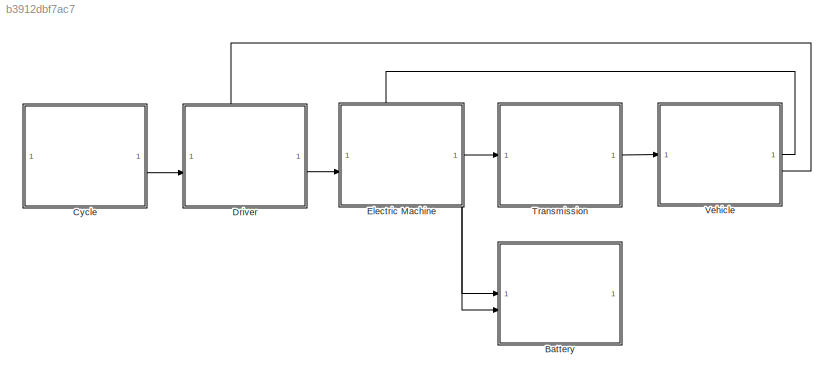
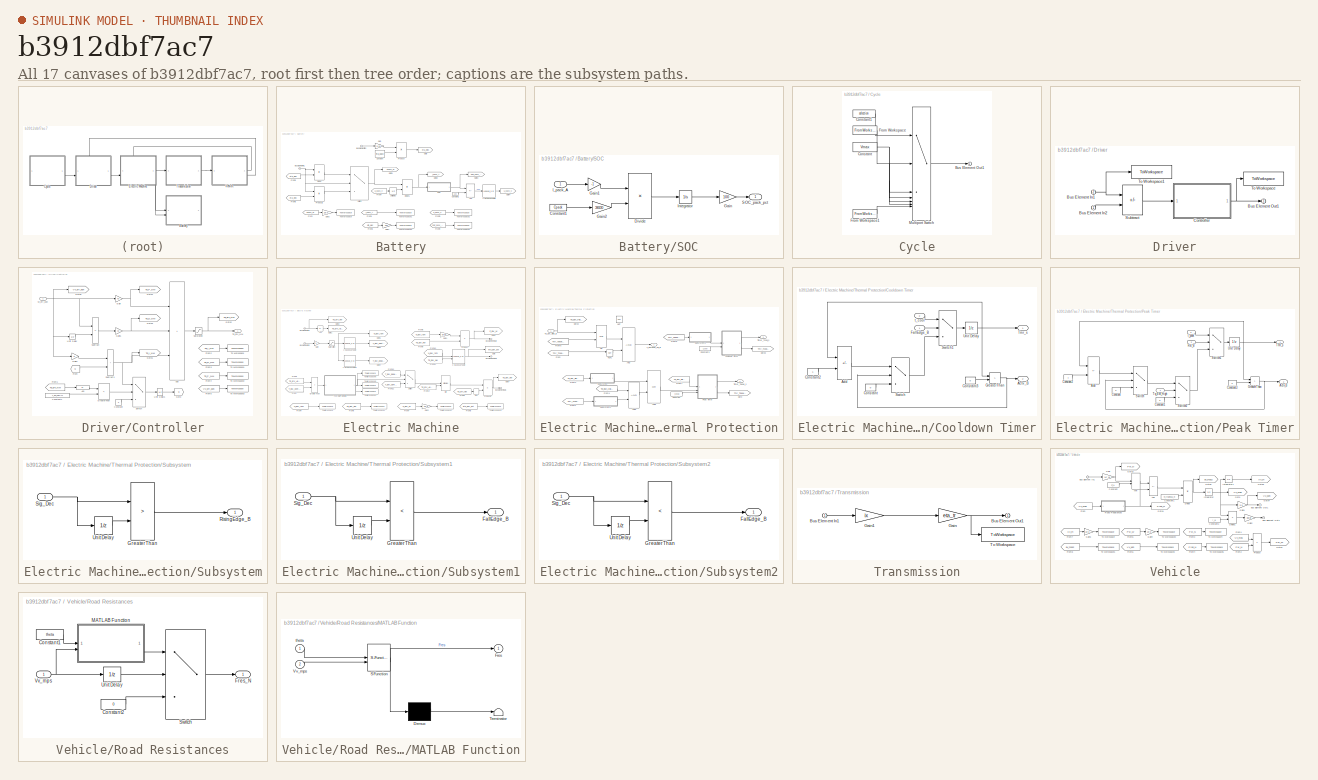
[diagram: thumbnail index - all 17 canvases of the model, root first then tree order]
MODEL slx_b3912dbf7ac7
KIND model
CONFIG AbsTol = auto
CONFIG EnableMultiTasking = off
CONFIG FixedStep = auto
CONFIG MaxStep = auto
CONFIG MinStep = auto
CONFIG RelTol = 1e-3
CONFIG SampleTimeConstraint = Unconstrained
CONFIG SolverName = VariableStepAuto
CONFIG StartTime = 0.0
CONFIG StopTime = simtime
WORKSPACE source: mxarray member
WORKSPACE A_max = 2.22
WORKSPACE C_d = 0.23
WORKSPACE C_r = 0.011
WORKSPACE Cpack = 216
WORKSPACE DOD = [0 0.1 0.2 0.3 0.4 0.5 0.6 0.7 0.8 0.9 1 1.1 ... (1001 elements, 1001x1)]
WORKSPACE EM_N = [0 100 200 300 400 500 600 700 800 900 1000 1100 ... (171 elements, 1x171)]
WORKSPACE EM_N_Max = 17000
WORKSPACE EM_N_Min = 0
WORKSPACE EM_eff: Simulink.Parameter (value not decoded)
WORKSPACE Ff_N = 10218
WORKSPACE Kd = 0.3
WORKSPACE Ki = 0.02
WORKSPACE Kp = 15
WORKSPACE N_EM_eff = [0 34.06813627 68.13627255 102.2044088 136.2725451 170.3406814 204.4088176 238.4769539 272.5450902 306.6132265 340.6813627 374.749499 ... (500 elements, 1x500)]
WORKSPACE T_EM_Cont = [181.43664 181.43664 181.43664 181.43664 181.43664 181.43664 181.43664 181.43664 181.43664 181.43664 181.43664 181.43664 ... (171 elements, 171x1)]
WORKSPACE T_EM_Max = 375
WORKSPACE T_EM_Min = -375
WORKSPACE T_EM_Peak = [375 375 375 375 375 375 375 375 375 375 375 375 ... (171 elements, 171x1)]
WORKSPACE Tq_EM_eff = [0 0.751503006 1.503006012 2.254509018 3.006012024 3.75751503 4.509018036 5.260521042 6.012024048 6.763527054 7.51503006 8.266533066 ... (500 elements, 1x500)]
WORKSPACE Upack = [405.9 404.506 403.17334 401.89932 400.68136 399.51699 398.40386 397.33971 396.32239 395.34983 394.42006 393.53121 ... (1001 elements, 1001x1)]
WORKSPACE Upack_max = 405.9
WORKSPACE Vmax = 250
WORKSPACE a_r = 1.202
WORKSPACE eta_pack = 0.97
WORKSPACE eta_tr = 0.95
WORKSPACE g = 9.81
WORKSPACE ix = 9
WORKSPACE lambda_m = 1.05
WORKSPACE m_v = 1862
WORKSPACE r_w = 0.3277
WORKSPACE t_cool = 250
WORKSPACE t_peak = 20
BLOCK [SubSystem] Battery
  PortSchema = {"entries":[{"content":{"headerSize":26,"margin":15,"minimumSpacing":25,"sides":[{"content":{"connectorIds":["In1","In2"]},"type":"ConnectorPlacement.EquallySpacedRectSide","uuid":"68db000f-08f3-43d6-8df8-ef1e265f9696"},{"content":{"side":"RIGHT"},"type":"ConnectorPlacement.EquallySpacedRectSide","uuid":"83cc5010-d255-45a5-b8a1-63c53c107bd8"},{"content":{"side":"TOP"},"type":"ConnectorPlacement.Eq...<+252ch>
BLOCK [Lookup_n-D] Battery/1-D Lookup Table
  BreakpointsForDimension1 = DOD
  InputPortMap = u0
  InternalRulePriority = Speed
  NumberOfTableDimensions = 1
  RndMeth = Simplest
  Table = Upack
BLOCK [Sum] Battery/Add
  IconShape = rectangular
  Inputs = -+
BLOCK [Inport] Battery/Bus Element In1
BLOCK [Inport] Battery/Bus Element In2
  Port = 2
BLOCK [Constant] Battery/Constant
  Value = eta_pack
BLOCK [Constant] Battery/Constant1
  Value = 100
BLOCK [Product] Battery/Divide
  Inputs = */
BLOCK [Product] Battery/Divide1
  Inputs = */
BLOCK [From] Battery/From
  GotoTag = Ppack_W
BLOCK [From] Battery/From1
  GotoTag = I_pack_A
BLOCK [From] Battery/From2
  GotoTag = eta_elec
  TagVisibility = global
BLOCK [From] Battery/From3
  GotoTag = U_pack_V
BLOCK [From] Battery/From4
  GotoTag = SOC_pack_pct
BLOCK [From] Battery/From5
  GotoTag = eta_elec
  TagVisibility = global
BLOCK [From] Battery/From6
  GotoTag = eta_elec
  TagVisibility = global
BLOCK [From] Battery/From7
  GotoTag = U_pack_V
BLOCK [Gain] Battery/Gain
  Gain = 0.01
BLOCK [Gain] Battery/Gain1
  Gain = 1e2
BLOCK [Gain] Battery/Gain2
  Gain = 1e-3
BLOCK [Goto] Battery/Goto
  GotoTag = eta_elec
  TagVisibility = global
BLOCK [Goto] Battery/Goto1
  GotoTag = Ppack_W
BLOCK [Goto] Battery/Goto2
  GotoTag = I_pack_A
BLOCK [Goto] Battery/Goto3
  GotoTag = SOC_pack_pct
BLOCK [Goto] Battery/Goto4
  GotoTag = U_pack_V
BLOCK [Product] Battery/Product
BLOCK [Product] Battery/Product2
BLOCK [SubSystem] Battery/SOC
BLOCK [Constant] Battery/SOC/Constant1
  Value = Cpack
BLOCK [Product] Battery/SOC/Divide
  Inputs = */
BLOCK [Gain] Battery/SOC/Gain
  Gain = 100
BLOCK [Gain] Battery/SOC/Gain1
  Gain = -1
BLOCK [Gain] Battery/SOC/Gain2
  Gain = 3600
BLOCK [Inport] Battery/SOC/I_pack_A
BLOCK [Integrator] Battery/SOC/Integrator
  InitialCondition = Soc_init
  LimitOutput = on
  LowerSaturationLimit = 0
  UpperSaturationLimit = 1
BLOCK [Outport] Battery/SOC/SOC_pack_pct
BLOCK [Switch] Battery/Switch
  Criteria = u2 > Threshold
  InputSameDT = off
  SaturateOnIntegerOverflow = off
BLOCK [ToWorkspace] Battery/To Workspace
  FixptAsFi = on
  MaxDataPoints = inf
  SampleTime = -1
  SaveFormat = Timeseries
  VariableName = Ppack_KW
BLOCK [ToWorkspace] Battery/To Workspace1
  FixptAsFi = on
  MaxDataPoints = inf
  SampleTime = -1
  SaveFormat = Timeseries
  VariableName = I_pack_A
BLOCK [ToWorkspace] Battery/To Workspace2
  FixptAsFi = on
  MaxDataPoints = inf
  SampleTime = -1
  SaveFormat = Timeseries
  VariableName = U_pack_V
BLOCK [ToWorkspace] Battery/To Workspace3
  FixptAsFi = on
  MaxDataPoints = inf
  SampleTime = -1
  SaveFormat = Timeseries
  VariableName = eta_elec
BLOCK [ToWorkspace] Battery/To Workspace4
  FixptAsFi = on
  MaxDataPoints = inf
  SampleTime = -1
  SaveFormat = Timeseries
  VariableName = SOC_pack_pct
BLOCK [UnitDelay] Battery/Unit Delay
  HasFrameUpgradeWarning = on
  InitialCondition = 405.9
  SampleTime = -1
BLOCK [SubSystem] Cycle
  PortSchema = {"entries":[{"content":{"headerSize":26,"margin":15,"minimumSpacing":25,"sides":[{"content":{},"type":"ConnectorPlacement.EquallySpacedRectSide","uuid":"68db000f-08f3-43d6-8df8-ef1e265f9696"},{"content":{"connectorIds":["Out1"],"side":"RIGHT"},"type":"ConnectorPlacement.EquallySpacedRectSide","uuid":"83cc5010-d255-45a5-b8a1-63c53c107bd8"},{"content":{"side":"TOP"},"type":"ConnectorPlacement.Equall...<+248ch>
BLOCK [Outport] Cycle/Bus Element Out1
BLOCK [Constant] Cycle/Constant
  Value = Vmax
BLOCK [Constant] Cycle/Constant1
  Value = selection
BLOCK [FromWorkspace] Cycle/From Workspace
  VariableName = WLTC
BLOCK [FromWorkspace] Cycle/From Workspace1
  VariableName = Const_V
BLOCK [MultiPortSwitch] Cycle/Multiport Switch
  InputSameDT = off
  Inputs = 6
  SaturateOnIntegerOverflow = off
BLOCK [SubSystem] Driver
  PortSchema = {"entries":[{"content":{"headerSize":26,"margin":15,"minimumSpacing":25,"sides":[{"content":{"connectorIds":["In2"]},"type":"ConnectorPlacement.EquallySpacedRectSide","uuid":"68db000f-08f3-43d6-8df8-ef1e265f9696"},{"content":{"connectorIds":["Out1"],"side":"RIGHT"},"type":"ConnectorPlacement.EquallySpacedRectSide","uuid":"83cc5010-d255-45a5-b8a1-63c53c107bd8"},{"content":{"connectorIds":["In1"],"s...<+293ch>
BLOCK [Inport] Driver/Bus Element In1
  Port = 2
BLOCK [Inport] Driver/Bus Element In2
BLOCK [Outport] Driver/Bus Element Out1
BLOCK [SubSystem] Driver/Controller
BLOCK [Abs] Driver/Controller/Abs
  SaturateOnIntegerOverflow = off
BLOCK [Sum] Driver/Controller/Add
  IconShape = rectangular
  Inputs = +++
BLOCK [Constant] Driver/Controller/Constant
  Value = 0
BLOCK [Constant] Driver/Controller/Constant1
  Value = T_EM_Max*1.1
BLOCK [From] Driver/Controller/From
  GotoTag = Ti
BLOCK [From] Driver/Controller/From1
  GotoTag = Tq_drv_NM
BLOCK [From] Driver/Controller/From2
  GotoTag = Tq_I_NM
BLOCK [From] Driver/Controller/From3
  GotoTag = Tq_D_NM
BLOCK [From] Driver/Controller/From4
  GotoTag = Tq_P_NM
BLOCK [From] Driver/Controller/From5
  GotoTag = Vv_err_kph
BLOCK [Gain] Driver/Controller/Gain
  Gain = Kp
BLOCK [Gain] Driver/Controller/Gain1
  Gain = Kd
BLOCK [Gain] Driver/Controller/Gain2
  Gain = Ki
BLOCK [Goto] Driver/Controller/Goto
  GotoTag = Ti
BLOCK [Goto] Driver/Controller/Goto1
  GotoTag = Tq_I_NM
BLOCK [Goto] Driver/Controller/Goto2
  GotoTag = Tq_drv_NM
BLOCK [Goto] Driver/Controller/Goto3
  GotoTag = Tq_D_NM
BLOCK [Goto] Driver/Controller/Goto4
  GotoTag = Tq_P_NM
BLOCK [Goto] Driver/Controller/Goto5
  GotoTag = Vv_err_kph
BLOCK [RelationalOperator] Driver/Controller/GreaterThan
  InputSameDT = off
  Operator = <
  OutDataTypeStr = boolean
  RndMeth = Simplest
BLOCK [Saturate] Driver/Controller/Saturation
  LowerLimit = T_EM_Min*1.1
  UpperLimit = T_EM_Max*1.1
BLOCK [Sum] Driver/Controller/Subtract
  IconShape = rectangular
  Inputs = +-
BLOCK [Sum] Driver/Controller/Subtract1
  IconShape = rectangular
BLOCK [Switch] Driver/Controller/Switch
  Criteria = u2 > Threshold
  InputSameDT = off
  SaturateOnIntegerOverflow = off
BLOCK [ToWorkspace] Driver/Controller/To Workspace
  FixptAsFi = on
  MaxDataPoints = inf
  SampleTime = -1
  SaveFormat = Timeseries
  VariableName = Tq_I_NM
BLOCK [ToWorkspace] Driver/Controller/To Workspace1
  FixptAsFi = on
  MaxDataPoints = inf
  SampleTime = -1
  SaveFormat = Timeseries
  VariableName = Tq_D_NM
BLOCK [ToWorkspace] Driver/Controller/To Workspace2
  FixptAsFi = on
  MaxDataPoints = inf
  SampleTime = -1
  SaveFormat = Timeseries
  VariableName = Tq_P_NM
BLOCK [ToWorkspace] Driver/Controller/To Workspace3
  FixptAsFi = on
  MaxDataPoints = inf
  SampleTime = -1
  SaveFormat = Timeseries
  VariableName = Vv_err_kph
BLOCK [Outport] Driver/Controller/Tq_drv_NM
BLOCK [UnitDelay] Driver/Controller/Unit Delay
  HasFrameUpgradeWarning = on
  SampleTime = -1
BLOCK [UnitDelay] Driver/Controller/Unit Delay1
  HasFrameUpgradeWarning = on
  SampleTime = -1
BLOCK [Inport] Driver/Controller/Vv_err_kph
BLOCK [Sum] Driver/Subtract
  IconShape = rectangular
  Inputs = +-
BLOCK [ToWorkspace] Driver/To Workspace
  FixptAsFi = on
  MaxDataPoints = inf
  SampleTime = -1
  SaveFormat = Timeseries
  VariableName = Tq_drv_NM
BLOCK [ToWorkspace] Driver/To Workspace1
  FixptAsFi = on
  MaxDataPoints = inf
  SampleTime = -1
  SaveFormat = Timeseries
  VariableName = Vt_kph
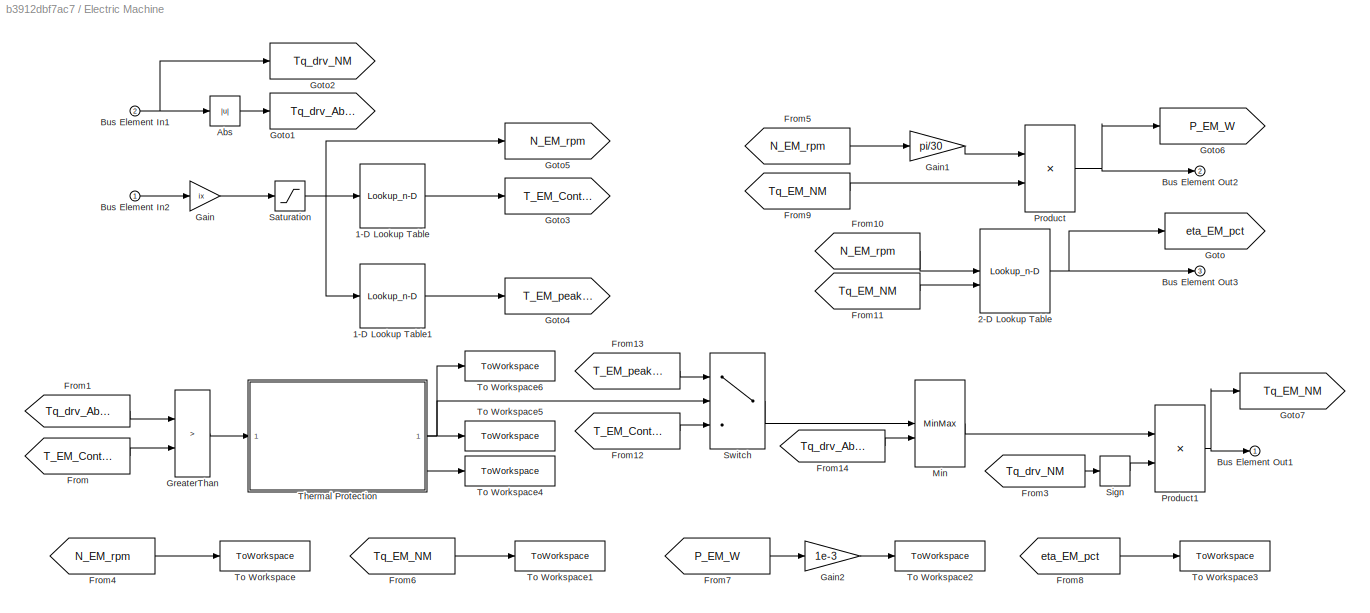
BLOCK [SubSystem] Electric Machine
  PortSchema = {"entries":[{"content":{"headerSize":26,"margin":15,"minimumSpacing":25,"sides":[{"content":{"connectorIds":["In2"]},"type":"ConnectorPlacement.EquallySpacedRectSide","uuid":"68db000f-08f3-43d6-8df8-ef1e265f9696"},{"content":{"connectorIds":["Out1"],"side":"RIGHT"},"type":"ConnectorPlacement.EquallySpacedRectSide","uuid":"83cc5010-d255-45a5-b8a1-63c53c107bd8"},{"content":{"connectorIds":["In1"],"s...<+450ch>
BLOCK [Lookup_n-D] Electric Machine/1-D Lookup Table
  BreakpointsForDimension1 = EM_N
  InputPortMap = u0
  InternalRulePriority = Speed
  NumberOfTableDimensions = 1
  RndMeth = Simplest
  Table = T_EM_Cont
BLOCK [Lookup_n-D] Electric Machine/1-D Lookup Table1
  BreakpointsForDimension1 = EM_N
  InputPortMap = u0
  InternalRulePriority = Speed
  NumberOfTableDimensions = 1
  RndMeth = Simplest
  Table = T_EM_Peak
BLOCK [Lookup_n-D] Electric Machine/2-D Lookup Table
  BreakpointsForDimension1 = N_EM_eff
  BreakpointsForDimension2 = Tq_EM_eff
  InputPortMap = u0,u1
  InternalRulePriority = Speed
  RndMeth = Simplest
  Table = EM_eff
BLOCK [Abs] Electric Machine/Abs
  SaturateOnIntegerOverflow = off
BLOCK [Inport] Electric Machine/Bus Element In1
  Port = 2
BLOCK [Inport] Electric Machine/Bus Element In2
BLOCK [Outport] Electric Machine/Bus Element Out1
BLOCK [Outport] Electric Machine/Bus Element Out2
  Port = 2
BLOCK [Outport] Electric Machine/Bus Element Out3
  Port = 3
BLOCK [From] Electric Machine/From
  GotoTag = T_EM_Cont_NM
BLOCK [From] Electric Machine/From1
  GotoTag = Tq_drv_Abs_NM
BLOCK [From] Electric Machine/From10
  GotoTag = N_EM_rpm
  TagVisibility = global
BLOCK [From] Electric Machine/From11
  GotoTag = Tq_EM_NM
BLOCK [From] Electric Machine/From12
  GotoTag = T_EM_Cont_NM
BLOCK [From] Electric Machine/From13
  GotoTag = T_EM_peak_NM
BLOCK [From] Electric Machine/From14
  GotoTag = Tq_drv_Abs_NM
BLOCK [From] Electric Machine/From3
  GotoTag = Tq_drv_NM
BLOCK [From] Electric Machine/From4
  GotoTag = N_EM_rpm
  TagVisibility = global
BLOCK [From] Electric Machine/From5
  GotoTag = N_EM_rpm
  TagVisibility = global
BLOCK [From] Electric Machine/From6
  GotoTag = Tq_EM_NM
BLOCK [From] Electric Machine/From7
  GotoTag = P_EM_W
  TagVisibility = global
BLOCK [From] Electric Machine/From8
  GotoTag = eta_EM_pct
BLOCK [From] Electric Machine/From9
  GotoTag = Tq_EM_NM
BLOCK [Gain] Electric Machine/Gain
  Gain = ix
BLOCK [Gain] Electric Machine/Gain1
  Gain = pi/30
BLOCK [Gain] Electric Machine/Gain2
  Gain = 1e-3
BLOCK [Goto] Electric Machine/Goto
  GotoTag = eta_EM_pct
BLOCK [Goto] Electric Machine/Goto1
  GotoTag = Tq_drv_Abs_NM
BLOCK [Goto] Electric Machine/Goto2
  GotoTag = Tq_drv_NM
BLOCK [Goto] Electric Machine/Goto3
  GotoTag = T_EM_Cont_NM
BLOCK [Goto] Electric Machine/Goto4
  GotoTag = T_EM_peak_NM
BLOCK [Goto] Electric Machine/Goto5
  GotoTag = N_EM_rpm
  TagVisibility = global
BLOCK [Goto] Electric Machine/Goto6
  GotoTag = P_EM_W
  TagVisibility = global
BLOCK [Goto] Electric Machine/Goto7
  GotoTag = Tq_EM_NM
BLOCK [RelationalOperator] Electric Machine/GreaterThan
  InputSameDT = off
  Operator = >
  OutDataTypeStr = boolean
  RndMeth = Simplest
BLOCK [MinMax] Electric Machine/Min
  Inputs = 2
BLOCK [Product] Electric Machine/Product
BLOCK [Product] Electric Machine/Product1
BLOCK [Saturate] Electric Machine/Saturation
  LowerLimit = EM_N_Min
  UpperLimit = EM_N_Max
BLOCK [Signum] Electric Machine/Sign
BLOCK [Switch] Electric Machine/Switch
  Criteria = u2 ~= 0
  InputSameDT = off
  SaturateOnIntegerOverflow = off
BLOCK [SubSystem] Electric Machine/Thermal Protection
BLOCK [Logic] Electric Machine/Thermal Protection/AND
  AllPortsSameDT = off
  OutDataTypeStr = boolean
BLOCK [Logic] Electric Machine/Thermal Protection/AND1
  AllPortsSameDT = off
  Operator = OR
  OutDataTypeStr = boolean
BLOCK [Logic] Electric Machine/Thermal Protection/AND2
  AllPortsSameDT = off
  OutDataTypeStr = boolean
BLOCK [Constant] Electric Machine/Thermal Protection/Constant
  Value = t_peak
BLOCK [Constant] Electric Machine/Thermal Protection/Constant1
  Value = t_cool
BLOCK [SubSystem] Electric Machine/Thermal Protection/Cooldown Timer
BLOCK [Outport] Electric Machine/Thermal Protection/Cooldown Timer/Actv_B
  Port = 2
BLOCK [Sum] Electric Machine/Thermal Protection/Cooldown Timer/Add
  IconShape = rectangular
  Inputs = +-
BLOCK [Constant] Electric Machine/Thermal Protection/Cooldown Timer/Constant
  Value = 0
BLOCK [Constant] Electric Machine/Thermal Protection/Cooldown Timer/Constant2
BLOCK [Constant] Electric Machine/Thermal Protection/Cooldown Timer/Constant3
  Value = 0
BLOCK [Inport] Electric Machine/Thermal Protection/Cooldown Timer/FallEdge_B
BLOCK [RelationalOperator] Electric Machine/Thermal Protection/Cooldown Timer/GreaterThan
  InputSameDT = off
  Operator = >
  OutDataTypeStr = boolean
  RndMeth = Simplest
BLOCK [Switch] Electric Machine/Thermal Protection/Cooldown Timer/Switch
  Criteria = u2 ~= 0
  InputSameDT = off
  SaturateOnIntegerOverflow = off
BLOCK [Switch] Electric Machine/Thermal Protection/Cooldown Timer/Switch1
  Criteria = u2 ~= 0
  InputSameDT = off
  SaturateOnIntegerOverflow = off
BLOCK [Outport] Electric Machine/Thermal Protection/Cooldown Timer/Tmr_s
BLOCK [UnitDelay] Electric Machine/Thermal Protection/Cooldown Timer/Unit Delay
  HasFrameUpgradeWarning = on
  SampleTime = -1
BLOCK [Inport] Electric Machine/Thermal Protection/Cooldown Timer/t_cool
  Port = 2
BLOCK [From] Electric Machine/Thermal Protection/From
  GotoTag = Tmr_Tcool_B
BLOCK [From] Electric Machine/Thermal Protection/From1
  GotoTag = Tmr_Tcool_B
BLOCK [From] Electric Machine/Thermal Protection/From2
  GotoTag = Tq_EM_High_B
  TagVisibility = global
BLOCK [From] Electric Machine/Thermal Protection/From4
  GotoTag = Tq_EM_High_B
  TagVisibility = global
BLOCK [From] Electric Machine/Thermal Protection/From5
  GotoTag = Tmr_Tpeak_B
BLOCK [From] Electric Machine/Thermal Protection/From6
  GotoTag = Tmr_Tpeak_B
BLOCK [From] Electric Machine/Thermal Protection/From7
  GotoTag = Tq_EM_High_B
  TagVisibility = global
BLOCK [Goto] Electric Machine/Thermal Protection/Goto
  GotoTag = Tmr_Tpeak_B
  NameLocation = top
BLOCK [Goto] Electric Machine/Thermal Protection/Goto2
  GotoTag = Tq_EM_High_B
  TagVisibility = global
BLOCK [Goto] Electric Machine/Thermal Protection/Goto3
  GotoTag = Tmr_Tcool_B
  NameLocation = top
BLOCK [Logic] Electric Machine/Thermal Protection/NOT
  AllPortsSameDT = off
  IconShape = distinctive
  Operator = NOT
  OutDataTypeStr = boolean
BLOCK [Logic] Electric Machine/Thermal Protection/NOT1
  AllPortsSameDT = off
  IconShape = distinctive
  Operator = NOT
  OutDataTypeStr = boolean
BLOCK [Logic] Electric Machine/Thermal Protection/OR
  AllPortsSameDT = off
  Operator = OR
  OutDataTypeStr = boolean
BLOCK [SubSystem] Electric Machine/Thermal Protection/Peak Timer
BLOCK [Outport] Electric Machine/Thermal Protection/Peak Timer/Actv_B
  Port = 2
BLOCK [Sum] Electric Machine/Thermal Protection/Peak Timer/Add
  IconShape = rectangular
  Inputs = +-
BLOCK [Constant] Electric Machine/Thermal Protection/Peak Timer/Constant
  Value = 0
BLOCK [Constant] Electric Machine/Thermal Protection/Peak Timer/Constant1
  Value = 0
BLOCK [Constant] Electric Machine/Thermal Protection/Peak Timer/Constant2
BLOCK [Constant] Electric Machine/Thermal Protection/Peak Timer/Constant3
  Value = 0
BLOCK [RelationalOperator] Electric Machine/Thermal Protection/Peak Timer/GreaterThan
  InputSameDT = off
  Operator = >
  OutDataTypeStr = boolean
  RndMeth = Simplest
BLOCK [Inport] Electric Machine/Thermal Protection/Peak Timer/Rst_B
  Port = 2
BLOCK [Switch] Electric Machine/Thermal Protection/Peak Timer/Switch
  Criteria = u2 ~= 0
  InputSameDT = off
  SaturateOnIntegerOverflow = off
BLOCK [Switch] Electric Machine/Thermal Protection/Peak Timer/Switch1
  Criteria = u2 ~= 0
  InputSameDT = off
  SaturateOnIntegerOverflow = off
BLOCK [Switch] Electric Machine/Thermal Protection/Peak Timer/Switch2
  Criteria = u2 ~= 0
  InputSameDT = off
  SaturateOnIntegerOverflow = off
BLOCK [Outport] Electric Machine/Thermal Protection/Peak Timer/Tmr_s
BLOCK [Inport] Electric Machine/Thermal Protection/Peak Timer/Tq_EM_High
BLOCK [UnitDelay] Electric Machine/Thermal Protection/Peak Timer/Unit Delay
  HasFrameUpgradeWarning = on
  SampleTime = -1
BLOCK [Inport] Electric Machine/Thermal Protection/Peak Timer/t_peak
  Port = 3
BLOCK [SubSystem] Electric Machine/Thermal Protection/Subsystem
BLOCK [RelationalOperator] Electric Machine/Thermal Protection/Subsystem/GreaterThan
  InputSameDT = off
  Operator = >
  OutDataTypeStr = boolean
  RndMeth = Simplest
BLOCK [Outport] Electric Machine/Thermal Protection/Subsystem/RisingEdge_B
BLOCK [Inport] Electric Machine/Thermal Protection/Subsystem/Sig_Dec
BLOCK [UnitDelay] Electric Machine/Thermal Protection/Subsystem/Unit Delay
  HasFrameUpgradeWarning = on
  SampleTime = -1
BLOCK [SubSystem] Electric Machine/Thermal Protection/Subsystem1
BLOCK [Outport] Electric Machine/Thermal Protection/Subsystem1/FallEdge_B
BLOCK [RelationalOperator] Electric Machine/Thermal Protection/Subsystem1/GreaterThan
  InputSameDT = off
  Operator = <
  OutDataTypeStr = boolean
  RndMeth = Simplest
BLOCK [Inport] Electric Machine/Thermal Protection/Subsystem1/Sig_Dec
BLOCK [UnitDelay] Electric Machine/Thermal Protection/Subsystem1/Unit Delay
  HasFrameUpgradeWarning = on
  SampleTime = -1
BLOCK [SubSystem] Electric Machine/Thermal Protection/Subsystem2
BLOCK [Outport] Electric Machine/Thermal Protection/Subsystem2/FallEdge_B
BLOCK [RelationalOperator] Electric Machine/Thermal Protection/Subsystem2/GreaterThan
  InputSameDT = off
  Operator = <
  OutDataTypeStr = boolean
  RndMeth = Simplest
BLOCK [Inport] Electric Machine/Thermal Protection/Subsystem2/Sig_Dec
BLOCK [UnitDelay] Electric Machine/Thermal Protection/Subsystem2/Unit Delay
  HasFrameUpgradeWarning = on
  SampleTime = -1
BLOCK [Outport] Electric Machine/Thermal Protection/T_EMpeak_ON_B
BLOCK [Outport] Electric Machine/Thermal Protection/Timer_Tcool_s
  Port = 3
BLOCK [Outport] Electric Machine/Thermal Protection/Timer_Tpeak_s
  Port = 2
BLOCK [Inport] Electric Machine/Thermal Protection/Tq_EM_High_B
BLOCK [ToWorkspace] Electric Machine/To Workspace
  FixptAsFi = on
  MaxDataPoints = inf
  SampleTime = -1
  SaveFormat = Timeseries
  VariableName = N_EM_rpm
BLOCK [ToWorkspace] Electric Machine/To Workspace1
  FixptAsFi = on
  MaxDataPoints = inf
  SampleTime = -1
  SaveFormat = Timeseries
  VariableName = Tq_EM_NM
BLOCK [ToWorkspace] Electric Machine/To Workspace2
  FixptAsFi = on
  MaxDataPoints = inf
  SampleTime = -1
  SaveFormat = Timeseries
  VariableName = P_EM_KW
BLOCK [ToWorkspace] Electric Machine/To Workspace3
  FixptAsFi = on
  MaxDataPoints = inf
  SampleTime = -1
  SaveFormat = Timeseries
  VariableName = eta_EM_pct
BLOCK [ToWorkspace] Electric Machine/To Workspace4
  FixptAsFi = on
  MaxDataPoints = inf
  SampleTime = -1
  SaveFormat = Timeseries
  VariableName = Timer_Tcool_s
BLOCK [ToWorkspace] Electric Machine/To Workspace5
  FixptAsFi = on
  MaxDataPoints = inf
  SampleTime = -1
  SaveFormat = Timeseries
  VariableName = Timer_Tpeak_s
BLOCK [ToWorkspace] Electric Machine/To Workspace6
  FixptAsFi = on
  MaxDataPoints = inf
  SampleTime = -1
  SaveFormat = Timeseries
  VariableName = T_EMpeak_ON_B
BLOCK [SubSystem] Transmission
  PortSchema = {"entries":[{"content":{"headerSize":26,"margin":15,"minimumSpacing":25,"sides":[{"content":{"connectorIds":["In1"]},"type":"ConnectorPlacement.EquallySpacedRectSide","uuid":"68db000f-08f3-43d6-8df8-ef1e265f9696"},{"content":{"connectorIds":["Out1"],"side":"RIGHT"},"type":"ConnectorPlacement.EquallySpacedRectSide","uuid":"83cc5010-d255-45a5-b8a1-63c53c107bd8"},{"content":{"side":"TOP"},"type":"Con...<+270ch>
BLOCK [Inport] Transmission/Bus Element In1
BLOCK [Outport] Transmission/Bus Element Out1
BLOCK [Gain] Transmission/Gain
  Gain = eta_tr
BLOCK [Gain] Transmission/Gain1
  Gain = ix
BLOCK [ToWorkspace] Transmission/To Workspace
  FixptAsFi = on
  MaxDataPoints = inf
  SampleTime = -1
  SaveFormat = Timeseries
  VariableName = Tq_w_NM
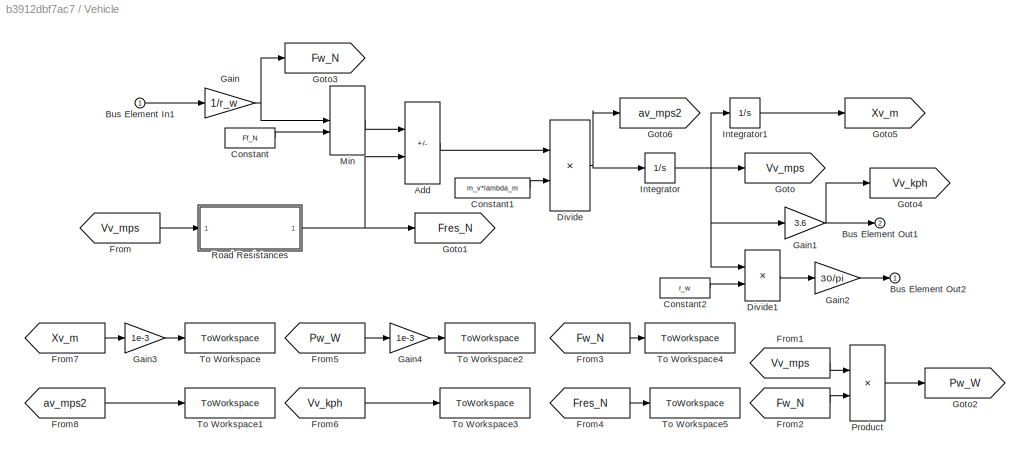
BLOCK [SubSystem] Vehicle
  PortSchema = {"entries":[{"content":{"headerSize":26,"margin":15,"minimumSpacing":25,"sides":[{"content":{"connectorIds":["In1"]},"type":"ConnectorPlacement.EquallySpacedRectSide","uuid":"68db000f-08f3-43d6-8df8-ef1e265f9696"},{"content":{"connectorIds":["Out1","Out2"],"side":"RIGHT"},"type":"ConnectorPlacement.EquallySpacedRectSide","uuid":"83cc5010-d255-45a5-b8a1-63c53c107bd8"},{"content":{"side":"TOP"},"typ...<+403ch>
BLOCK [Sum] Vehicle/Add
  IconShape = rectangular
  Inputs = +-
BLOCK [Inport] Vehicle/Bus Element In1
BLOCK [Outport] Vehicle/Bus Element Out1
  Port = 2
BLOCK [Outport] Vehicle/Bus Element Out2
BLOCK [Constant] Vehicle/Constant
  Value = Ff_N
BLOCK [Constant] Vehicle/Constant1
  Value = m_v*lambda_m
BLOCK [Constant] Vehicle/Constant2
  Value = r_w
BLOCK [Product] Vehicle/Divide
  Inputs = */
BLOCK [Product] Vehicle/Divide1
  Inputs = */
BLOCK [From] Vehicle/From
  GotoTag = Vv_mps
BLOCK [From] Vehicle/From1
  GotoTag = Vv_mps
BLOCK [From] Vehicle/From2
  GotoTag = Fw_N
BLOCK [From] Vehicle/From3
  GotoTag = Fw_N
BLOCK [From] Vehicle/From4
  GotoTag = Fres_N
BLOCK [From] Vehicle/From5
  GotoTag = Pw_W
BLOCK [From] Vehicle/From6
  GotoTag = Vv_kph
BLOCK [From] Vehicle/From7
  GotoTag = Xv_m
BLOCK [From] Vehicle/From8
  GotoTag = av_mps2
BLOCK [Gain] Vehicle/Gain
  Gain = 1/r_w
BLOCK [Gain] Vehicle/Gain1
  Gain = 3.6
BLOCK [Gain] Vehicle/Gain2
  Gain = 30/pi
BLOCK [Gain] Vehicle/Gain3
  Gain = 1e-3
BLOCK [Gain] Vehicle/Gain4
  Gain = 1e-3
BLOCK [Goto] Vehicle/Goto
  GotoTag = Vv_mps
BLOCK [Goto] Vehicle/Goto1
  GotoTag = Fres_N
BLOCK [Goto] Vehicle/Goto2
  GotoTag = Pw_W
BLOCK [Goto] Vehicle/Goto3
  GotoTag = Fw_N
BLOCK [Goto] Vehicle/Goto4
  GotoTag = Vv_kph
BLOCK [Goto] Vehicle/Goto5
  GotoTag = Xv_m
BLOCK [Goto] Vehicle/Goto6
  GotoTag = av_mps2
BLOCK [Integrator] Vehicle/Integrator
  LowerSaturationLimit = 0
  UpperSaturationLimit = 70
BLOCK [Integrator] Vehicle/Integrator1
BLOCK [MinMax] Vehicle/Min
  Inputs = 2
BLOCK [Product] Vehicle/Product
BLOCK [SubSystem] Vehicle/Road Resistances
BLOCK [Constant] Vehicle/Road Resistances/Constant1
  Value = theta
BLOCK [Constant] Vehicle/Road Resistances/Constant2
  Value = 0
BLOCK [Outport] Vehicle/Road Resistances/Fres_N
BLOCK [SubSystem] Vehicle/Road Resistances/MATLAB Function
  ErrorFcn = Stateflow.Translate.translate
  PermitHierarchicalResolution = ExplicitOnly
  SFBlockType = MATLAB Function
  TreatAsAtomicUnit = on
BLOCK [Demux] Vehicle/Road Resistances/MATLAB Function/ Demux 
  Outputs = 1
BLOCK [S-Function] Vehicle/Road Resistances/MATLAB Function/ SFunction 
  EnableBusSupport = on
  FunctionName = sf_sfun
  PortCounts = [2 2]
  SFcnIsStateOwnerBlock = off
  SFunctionDeploymentMode = off
  Tag = Stateflow S-Function 2
BLOCK [Terminator] Vehicle/Road Resistances/MATLAB Function/ Terminator 
BLOCK [Outport] Vehicle/Road Resistances/MATLAB Function/Fres
BLOCK [Inport] Vehicle/Road Resistances/MATLAB Function/Vv_mps
  Port = 2
BLOCK [Inport] Vehicle/Road Resistances/MATLAB Function/theta
BLOCK [Switch] Vehicle/Road Resistances/Switch
  Criteria = u2 > Threshold
  InputSameDT = off
  SaturateOnIntegerOverflow = off
BLOCK [UnitDelay] Vehicle/Road Resistances/Unit Delay
  HasFrameUpgradeWarning = on
  SampleTime = -1
BLOCK [Inport] Vehicle/Road Resistances/Vv_mps
BLOCK [ToWorkspace] Vehicle/To Workspace
  FixptAsFi = on
  MaxDataPoints = inf
  SampleTime = -1
  SaveFormat = Timeseries
  VariableName = Xv_km
BLOCK [ToWorkspace] Vehicle/To Workspace1
  FixptAsFi = on
  MaxDataPoints = inf
  SampleTime = -1
  SaveFormat = Timeseries
  VariableName = av_mps2
BLOCK [ToWorkspace] Vehicle/To Workspace2
  FixptAsFi = on
  MaxDataPoints = inf
  SampleTime = -1
  SaveFormat = Timeseries
  VariableName = Pw_kw
BLOCK [ToWorkspace] Vehicle/To Workspace3
  FixptAsFi = on
  MaxDataPoints = inf
  SampleTime = -1
  SaveFormat = Timeseries
  VariableName = Vv_kph
BLOCK [ToWorkspace] Vehicle/To Workspace4
  FixptAsFi = on
  MaxDataPoints = inf
  SampleTime = -1
  SaveFormat = Timeseries
  VariableName = Fw_N
BLOCK [ToWorkspace] Vehicle/To Workspace5
  FixptAsFi = on
  MaxDataPoints = inf
  SampleTime = -1
  SaveFormat = Timeseries
  VariableName = Fres_N
LINE Battery/1-D Lookup Table:1 -> Battery/Goto4:1
LINE Battery/Add:1 -> Battery/1-D Lookup Table:1
NET Battery/Bus Element In1:1 -> Battery/Divide:1, Battery/Product2:1, Battery/Switch:2
LINE Battery/Bus Element In2:1 -> Battery/Gain:1
LINE Battery/Constant1:1 -> Battery/Add:2
LINE Battery/Constant:1 -> Battery/Product:2
NET Battery/Divide1:1 -> Battery/Goto2:1, Battery/SOC:1
LINE Battery/Divide:1 -> Battery/Switch:1
LINE Battery/From1:1 -> Battery/To Workspace1:1
LINE Battery/From2:1 -> Battery/Gain1:1
LINE Battery/From3:1 -> Battery/To Workspace2:1
LINE Battery/From4:1 -> Battery/To Workspace4:1
LINE Battery/From5:1 -> Battery/Divide:2
LINE Battery/From6:1 -> Battery/Product2:2
LINE Battery/From7:1 -> Battery/Unit Delay:1
LINE Battery/From:1 -> Battery/Gain2:1
LINE Battery/Gain1:1 -> Battery/To Workspace3:1
LINE Battery/Gain2:1 -> Battery/To Workspace:1
LINE Battery/Gain:1 -> Battery/Product:1
LINE Battery/Product2:1 -> Battery/Switch:3
LINE Battery/Product:1 -> Battery/Goto:1
LINE Battery/SOC/Constant1:1 -> Battery/SOC/Gain2:1
LINE Battery/SOC/Divide:1 -> Battery/SOC/Integrator:1
LINE Battery/SOC/Gain1:1 -> Battery/SOC/Divide:1
LINE Battery/SOC/Gain2:1 -> Battery/SOC/Divide:2
LINE Battery/SOC/Gain:1 -> Battery/SOC/SOC_pack_pct:1
LINE Battery/SOC/I_pack_A:1 -> Battery/SOC/Gain1:1
LINE Battery/SOC/Integrator:1 -> Battery/SOC/Gain:1
NET Battery/SOC:1 -> Battery/Add:1, Battery/Goto3:1
NET Battery/Switch:1 -> Battery/Divide1:1, Battery/Goto1:1
LINE Battery/Unit Delay:1 -> Battery/Divide1:2
LINE Cycle/Constant1:1 -> Cycle/Multiport Switch:1
NET Cycle/Constant:1 -> Cycle/Multiport Switch:3, Cycle/Multiport Switch:4, Cycle/Multiport Switch:5, Cycle/Multiport Switch:6
LINE Cycle/From Workspace1:1 -> Cycle/Multiport Switch:7
LINE Cycle/From Workspace:1 -> Cycle/Multiport Switch:2
LINE Cycle/Multiport Switch:1 -> Cycle/Bus Element Out1:1
LINE Cycle:1 -> Driver:2
NET Driver/Bus Element In1:1 -> Driver/Subtract:1, Driver/To Workspace1:1
LINE Driver/Bus Element In2:1 -> Driver/Subtract:2
LINE Driver/Controller/Abs:1 -> Driver/Controller/GreaterThan:1
LINE Driver/Controller/Add:1 -> Driver/Controller/Saturation:1
LINE Driver/Controller/Constant1:1 -> Driver/Controller/GreaterThan:2
LINE Driver/Controller/Constant:1 -> Driver/Controller/Switch:3
LINE Driver/Controller/From1:1 -> Driver/Controller/Abs:1
LINE Driver/Controller/From2:1 -> Driver/Controller/To Workspace:1
LINE Driver/Controller/From3:1 -> Driver/Controller/To Workspace1:1
LINE Driver/Controller/From4:1 -> Driver/Controller/To Workspace2:1
LINE Driver/Controller/From5:1 -> Driver/Controller/To Workspace3:1
LINE Driver/Controller/From:1 -> Driver/Controller/Subtract1:2
NET Driver/Controller/Gain1:1 -> Driver/Controller/Add:2, Driver/Controller/Goto3:1
LINE Driver/Controller/Gain2:1 -> Driver/Controller/Subtract1:1
NET Driver/Controller/Gain:1 -> Driver/Controller/Add:1, Driver/Controller/Goto4:1
LINE Driver/Controller/GreaterThan:1 -> Driver/Controller/Switch:2
NET Driver/Controller/Saturation:1 -> Driver/Controller/Goto2:1, Driver/Controller/Tq_drv_NM:1
NET Driver/Controller/Subtract1:1 -> Driver/Controller/Add:3, Driver/Controller/Goto1:1, Driver/Controller/Switch:1
LINE Driver/Controller/Subtract:1 -> Driver/Controller/Gain1:1
LINE Driver/Controller/Switch:1 -> Driver/Controller/Unit Delay1:1
LINE Driver/Controller/Unit Delay1:1 -> Driver/Controller/Goto:1
LINE Driver/Controller/Unit Delay:1 -> Driver/Controller/Subtract:2
NET Driver/Controller/Vv_err_kph:1 -> Driver/Controller/Gain2:1, Driver/Controller/Gain:1, Driver/Controller/Goto5:1, Driver/Controller/Subtract:1, Driver/Controller/Unit Delay:1
NET Driver/Controller:1 -> Driver/Bus Element Out1:1, Driver/To Workspace:1
LINE Driver/Subtract:1 -> Driver/Controller:1
LINE Driver:1 -> Electric Machine:2
LINE Electric Machine/1-D Lookup Table1:1 -> Electric Machine/Goto4:1
LINE Electric Machine/1-D Lookup Table:1 -> Electric Machine/Goto3:1
NET Electric Machine/2-D Lookup Table:1 -> Electric Machine/Bus Element Out3:1, Electric Machine/Goto:1
LINE Electric Machine/Abs:1 -> Electric Machine/Goto1:1
NET Electric Machine/Bus Element In1:1 -> Electric Machine/Abs:1, Electric Machine/Goto2:1
LINE Electric Machine/Bus Element In2:1 -> Electric Machine/Gain:1
LINE Electric Machine/From10:1 -> Electric Machine/2-D Lookup Table:1
LINE Electric Machine/From11:1 -> Electric Machine/2-D Lookup Table:2
LINE Electric Machine/From12:1 -> Electric Machine/Switch:3
LINE Electric Machine/From13:1 -> Electric Machine/Switch:1
LINE Electric Machine/From14:1 -> Electric Machine/Min:2
LINE Electric Machine/From1:1 -> Electric Machine/GreaterThan:1
LINE Electric Machine/From3:1 -> Electric Machine/Sign:1
LINE Electric Machine/From4:1 -> Electric Machine/To Workspace:1
LINE Electric Machine/From5:1 -> Electric Machine/Gain1:1
LINE Electric Machine/From6:1 -> Electric Machine/To Workspace1:1
LINE Electric Machine/From7:1 -> Electric Machine/Gain2:1
LINE Electric Machine/From8:1 -> Electric Machine/To Workspace3:1
LINE Electric Machine/From9:1 -> Electric Machine/Product:2
LINE Electric Machine/From:1 -> Electric Machine/GreaterThan:2
LINE Electric Machine/Gain1:1 -> Electric Machine/Product:1
LINE Electric Machine/Gain2:1 -> Electric Machine/To Workspace2:1
LINE Electric Machine/Gain:1 -> Electric Machine/Saturation:1
LINE Electric Machine/GreaterThan:1 -> Electric Machine/Thermal Protection:1
LINE Electric Machine/Min:1 -> Electric Machine/Product1:1
NET Electric Machine/Product1:1 -> Electric Machine/Bus Element Out1:1, Electric Machine/Goto7:1
NET Electric Machine/Product:1 -> Electric Machine/Bus Element Out2:1, Electric Machine/Goto6:1
NET Electric Machine/Saturation:1 -> Electric Machine/1-D Lookup Table1:1, Electric Machine/1-D Lookup Table:1, Electric Machine/Goto5:1
LINE Electric Machine/Sign:1 -> Electric Machine/Product1:2
LINE Electric Machine/Switch:1 -> Electric Machine/Min:1
LINE Electric Machine/Thermal Protection/AND1:1 -> Electric Machine/Thermal Protection/Peak Timer:2
LINE Electric Machine/Thermal Protection/AND2:1 -> Electric Machine/Thermal Protection/AND1:2
LINE Electric Machine/Thermal Protection/AND:1 -> Electric Machine/Thermal Protection/T_EMpeak_ON_B:1
LINE Electric Machine/Thermal Protection/Constant1:1 -> Electric Machine/Thermal Protection/Cooldown Timer:2
LINE Electric Machine/Thermal Protection/Constant:1 -> Electric Machine/Thermal Protection/Peak Timer:3
LINE Electric Machine/Thermal Protection/Cooldown Timer/Add:1 -> Electric Machine/Thermal Protection/Cooldown Timer/Switch:1
LINE Electric Machine/Thermal Protection/Cooldown Timer/Constant2:1 -> Electric Machine/Thermal Protection/Cooldown Timer/Add:2
LINE Electric Machine/Thermal Protection/Cooldown Timer/Constant3:1 -> Electric Machine/Thermal Protection/Cooldown Timer/GreaterThan:2
LINE Electric Machine/Thermal Protection/Cooldown Timer/Constant:1 -> Electric Machine/Thermal Protection/Cooldown Timer/Switch:3
LINE Electric Machine/Thermal Protection/Cooldown Timer/FallEdge_B:1 -> Electric Machine/Thermal Protection/Cooldown Timer/Switch1:2
NET Electric Machine/Thermal Protection/Cooldown Timer/GreaterThan:1 -> Electric Machine/Thermal Protection/Cooldown Timer/Actv_B:1, Electric Machine/Thermal Protection/Cooldown Timer/Switch:2
LINE Electric Machine/Thermal Protection/Cooldown Timer/Switch1:1 -> Electric Machine/Thermal Protection/Cooldown Timer/Unit Delay:1
LINE Electric Machine/Thermal Protection/Cooldown Timer/Switch:1 -> Electric Machine/Thermal Protection/Cooldown Timer/Switch1:3
NET Electric Machine/Thermal Protection/Cooldown Timer/Unit Delay:1 -> Electric Machine/Thermal Protection/Cooldown Timer/Add:1, Electric Machine/Thermal Protection/Cooldown Timer/GreaterThan:1, Electric Machine/Thermal Protection/Cooldown Timer/Tmr_s:1
LINE Electric Machine/Thermal Protection/Cooldown Timer/t_cool:1 -> Electric Machine/Thermal Protection/Cooldown Timer/Switch1:1
LINE Electric Machine/Thermal Protection/Cooldown Timer:1 -> Electric Machine/Thermal Protection/Timer_Tcool_s:1
LINE Electric Machine/Thermal Protection/Cooldown Timer:2 -> Electric Machine/Thermal Protection/Goto3:1
LINE Electric Machine/Thermal Protection/From1:1 -> Electric Machine/Thermal Protection/Subsystem1:1
LINE Electric Machine/Thermal Protection/From2:1 -> Electric Machine/Thermal Protection/Subsystem:1
LINE Electric Machine/Thermal Protection/From4:1 -> Electric Machine/Thermal Protection/AND2:1
LINE Electric Machine/Thermal Protection/From5:1 -> Electric Machine/Thermal Protection/OR:2
LINE Electric Machine/Thermal Protection/From6:1 -> Electric Machine/Thermal Protection/Subsystem2:1
LINE Electric Machine/Thermal Protection/From7:1 -> Electric Machine/Thermal Protection/Peak Timer:1
LINE Electric Machine/Thermal Protection/From:1 -> Electric Machine/Thermal Protection/NOT1:1
LINE Electric Machine/Thermal Protection/NOT1:1 -> Electric Machine/Thermal Protection/AND:2
LINE Electric Machine/Thermal Protection/OR:1 -> Electric Machine/Thermal Protection/AND:1
LINE Electric Machine/Thermal Protection/Peak Timer/Add:1 -> Electric Machine/Thermal Protection/Peak Timer/Switch:1
LINE Electric Machine/Thermal Protection/Peak Timer/Constant1:1 -> Electric Machine/Thermal Protection/Peak Timer/Switch2:3
LINE Electric Machine/Thermal Protection/Peak Timer/Constant2:1 -> Electric Machine/Thermal Protection/Peak Timer/Add:2
LINE Electric Machine/Thermal Protection/Peak Timer/Constant3:1 -> Electric Machine/Thermal Protection/Peak Timer/GreaterThan:2
LINE Electric Machine/Thermal Protection/Peak Timer/Constant:1 -> Electric Machine/Thermal Protection/Peak Timer/Switch:3
NET Electric Machine/Thermal Protection/Peak Timer/GreaterThan:1 -> Electric Machine/Thermal Protection/Peak Timer/Actv_B:1, Electric Machine/Thermal Protection/Peak Timer/Switch:2
LINE Electric Machine/Thermal Protection/Peak Timer/Rst_B:1 -> Electric Machine/Thermal Protection/Peak Timer/Switch1:2
LINE Electric Machine/Thermal Protection/Peak Timer/Switch1:1 -> Electric Machine/Thermal Protection/Peak Timer/Unit Delay:1
LINE Electric Machine/Thermal Protection/Peak Timer/Switch2:1 -> Electric Machine/Thermal Protection/Peak Timer/Switch1:3
LINE Electric Machine/Thermal Protection/Peak Timer/Switch:1 -> Electric Machine/Thermal Protection/Peak Timer/Switch2:1
LINE Electric Machine/Thermal Protection/Peak Timer/Tq_EM_High:1 -> Electric Machine/Thermal Protection/Peak Timer/Switch2:2
NET Electric Machine/Thermal Protection/Peak Timer/Unit Delay:1 -> Electric Machine/Thermal Protection/Peak Timer/Add:1, Electric Machine/Thermal Protection/Peak Timer/GreaterThan:1, Electric Machine/Thermal Protection/Peak Timer/Tmr_s:1
LINE Electric Machine/Thermal Protection/Peak Timer/t_peak:1 -> Electric Machine/Thermal Protection/Peak Timer/Switch1:1
LINE Electric Machine/Thermal Protection/Peak Timer:1 -> Electric Machine/Thermal Protection/Timer_Tpeak_s:1
LINE Electric Machine/Thermal Protection/Peak Timer:2 -> Electric Machine/Thermal Protection/Goto:1
LINE Electric Machine/Thermal Protection/Subsystem/GreaterThan:1 -> Electric Machine/Thermal Protection/Subsystem/RisingEdge_B:1
NET Electric Machine/Thermal Protection/Subsystem/Sig_Dec:1 -> Electric Machine/Thermal Protection/Subsystem/GreaterThan:1, Electric Machine/Thermal Protection/Subsystem/Unit Delay:1
LINE Electric Machine/Thermal Protection/Subsystem/Unit Delay:1 -> Electric Machine/Thermal Protection/Subsystem/GreaterThan:2
LINE Electric Machine/Thermal Protection/Subsystem1/GreaterThan:1 -> Electric Machine/Thermal Protection/Subsystem1/FallEdge_B:1
NET Electric Machine/Thermal Protection/Subsystem1/Sig_Dec:1 -> Electric Machine/Thermal Protection/Subsystem1/GreaterThan:1, Electric Machine/Thermal Protection/Subsystem1/Unit Delay:1
LINE Electric Machine/Thermal Protection/Subsystem1/Unit Delay:1 -> Electric Machine/Thermal Protection/Subsystem1/GreaterThan:2
LINE Electric Machine/Thermal Protection/Subsystem1:1 -> Electric Machine/Thermal Protection/AND2:2
LINE Electric Machine/Thermal Protection/Subsystem2/GreaterThan:1 -> Electric Machine/Thermal Protection/Subsystem2/FallEdge_B:1
NET Electric Machine/Thermal Protection/Subsystem2/Sig_Dec:1 -> Electric Machine/Thermal Protection/Subsystem2/GreaterThan:1, Electric Machine/Thermal Protection/Subsystem2/Unit Delay:1
LINE Electric Machine/Thermal Protection/Subsystem2/Unit Delay:1 -> Electric Machine/Thermal Protection/Subsystem2/GreaterThan:2
LINE Electric Machine/Thermal Protection/Subsystem2:1 -> Electric Machine/Thermal Protection/Cooldown Timer:1
LINE Electric Machine/Thermal Protection/Subsystem:1 -> Electric Machine/Thermal Protection/AND1:1
NET Electric Machine/Thermal Protection/Tq_EM_High_B:1 -> Electric Machine/Thermal Protection/Goto2:1, Electric Machine/Thermal Protection/OR:1
NET Electric Machine/Thermal Protection:1 -> Electric Machine/Switch:2, Electric Machine/To Workspace6:1
LINE Electric Machine/Thermal Protection:2 -> Electric Machine/To Workspace5:1
LINE Electric Machine/Thermal Protection:3 -> Electric Machine/To Workspace4:1
LINE Electric Machine:1 -> Transmission:1
LINE Electric Machine:2 -> Battery:1
LINE Electric Machine:3 -> Battery:2
LINE Transmission/Bus Element In1:1 -> Transmission/Gain1:1
LINE Transmission/Gain1:1 -> Transmission/Gain:1
NET Transmission/Gain:1 -> Transmission/Bus Element Out1:1, Transmission/To Workspace:1
LINE Transmission:1 -> Vehicle:1
LINE Vehicle/Add:1 -> Vehicle/Divide:1
LINE Vehicle/Bus Element In1:1 -> Vehicle/Gain:1
LINE Vehicle/Constant1:1 -> Vehicle/Divide:2
LINE Vehicle/Constant2:1 -> Vehicle/Divide1:2
LINE Vehicle/Constant:1 -> Vehicle/Min:2
LINE Vehicle/Divide1:1 -> Vehicle/Gain2:1
NET Vehicle/Divide:1 -> Vehicle/Goto6:1, Vehicle/Integrator:1
LINE Vehicle/From1:1 -> Vehicle/Product:1
LINE Vehicle/From2:1 -> Vehicle/Product:2
LINE Vehicle/From3:1 -> Vehicle/To Workspace4:1
LINE Vehicle/From4:1 -> Vehicle/To Workspace5:1
LINE Vehicle/From5:1 -> Vehicle/Gain4:1
LINE Vehicle/From6:1 -> Vehicle/To Workspace3:1
LINE Vehicle/From7:1 -> Vehicle/Gain3:1
LINE Vehicle/From8:1 -> Vehicle/To Workspace1:1
LINE Vehicle/From:1 -> Vehicle/Road Resistances:1
NET Vehicle/Gain1:1 -> Vehicle/Bus Element Out1:1, Vehicle/Goto4:1
LINE Vehicle/Gain2:1 -> Vehicle/Bus Element Out2:1
LINE Vehicle/Gain3:1 -> Vehicle/To Workspace:1
LINE Vehicle/Gain4:1 -> Vehicle/To Workspace2:1
NET Vehicle/Gain:1 -> Vehicle/Goto3:1, Vehicle/Min:1
LINE Vehicle/Integrator1:1 -> Vehicle/Goto5:1
NET Vehicle/Integrator:1 -> Vehicle/Divide1:1, Vehicle/Gain1:1, Vehicle/Goto:1, Vehicle/Integrator1:1
LINE Vehicle/Min:1 -> Vehicle/Add:1
LINE Vehicle/Product:1 -> Vehicle/Goto2:1
LINE Vehicle/Road Resistances/Constant1:1 -> Vehicle/Road Resistances/MATLAB Function:1
LINE Vehicle/Road Resistances/Constant2:1 -> Vehicle/Road Resistances/Switch:3
LINE Vehicle/Road Resistances/MATLAB Function:1 -> Vehicle/Road Resistances/Switch:1
LINE Vehicle/Road Resistances/Switch:1 -> Vehicle/Road Resistances/Fres_N:1
LINE Vehicle/Road Resistances/Unit Delay:1 -> Vehicle/Road Resistances/Switch:2
NET Vehicle/Road Resistances/Vv_mps:1 -> Vehicle/Road Resistances/MATLAB Function:2, Vehicle/Road Resistances/Unit Delay:1
NET Vehicle/Road Resistances:1 -> Vehicle/Add:2, Vehicle/Goto1:1
LINE Vehicle:1 -> Electric Machine:1
LINE Vehicle:2 -> Driver:1
note: NET lines group one-source signal fan-out (src -> all destinations, sorted); 1:1 wires keep LINE
CHART Vehicle/Road Resistances/MATLAB Function states=1 transitions=1
  STATE_LABEL 'eML_blk_kernel()'
  STATE_LABEL 'SCRIPT:\nfunction Fres = Fres_calc(theta,Vv_mps)\nm_v = 1862;\ng = 9.81;\nC_r = 0.011;\nA_max = 2.22;\na_r = 1.202;\nC_d = 0.23;\n\nFs = m_v*g*sind(theta);\nFr = m_v*g*C_r*cosd(theta);\nFa = 0.5*A_max*a_r*C_d*(Vv_mps)^2;\n\nFres = Fs+Fr+Fa;\nend\n'
CHART  states=0 transitions=0
